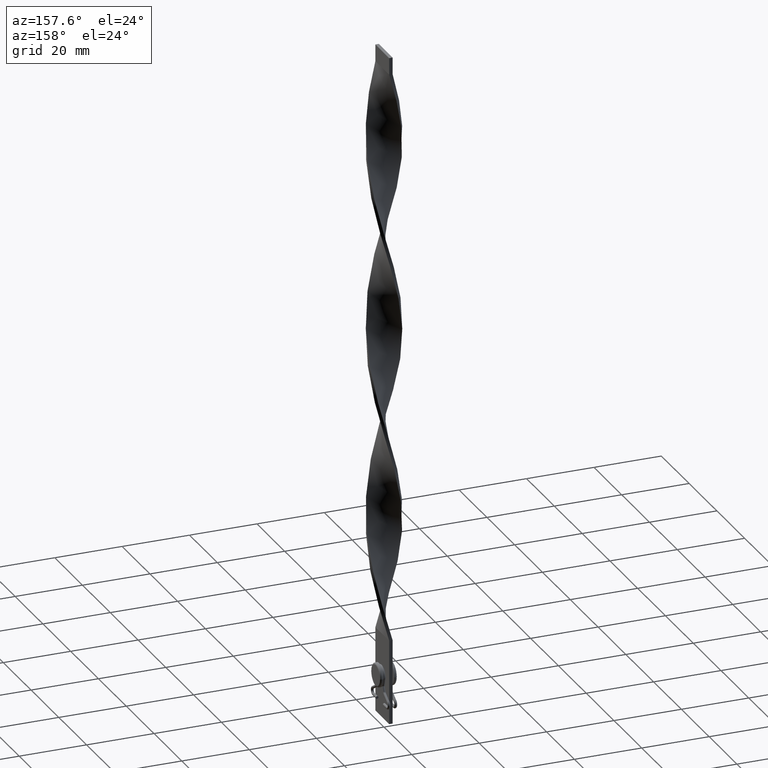
[diagram: clean part render]
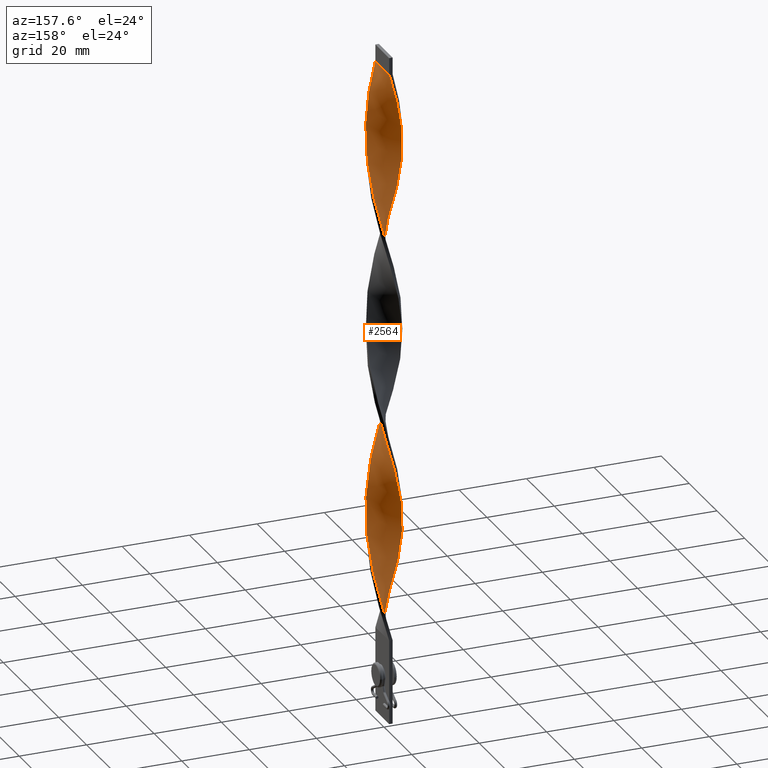
[diagram: same view with one face highlighted and labeled with its STEP entity id]
A machine part, auxiliary view. The second image highlights one B-rep face of the part: STEP entity #2564.
In plain terms, the highlighted face is a freeform B-spline surface patch.
Its self-contained STEP definition (entity closure, byte-faithful):
#6 = CARTESIAN_POINT ( 'NONE',  ( 2.830915826873204200, 4.151616020438156696, 150.9259259259259238 ) ) ;
#13 = CARTESIAN_POINT ( 'NONE',  ( -4.151616020438162913, -2.830915826873211305, 154.0740740740740478 ) ) ;
#19 = CARTESIAN_POINT ( 'NONE',  ( -5.010862853894501256, 0.3758370118285449535, 113.1481481481481381 ) ) ;
#43 = CARTESIAN_POINT ( 'NONE',  ( 1.240254406235387963, 4.869473175592372804, 31.29629629629629406 ) ) ;
#49 = CARTESIAN_POINT ( 'NONE',  ( -1.666278106443306317, 4.760964975158707091, 73.79629629629630472 ) ) ;
#66 = CARTESIAN_POINT ( 'NONE',  ( 4.956255668237032452, 0.9374433176296207426, 165.0925925925925810 ) ) ;
#92 = CARTESIAN_POINT ( 'NONE',  ( -3.289977561793735905, -3.823521657529087570, 36.01851851851851904 ) ) ;
#117 = CARTESIAN_POINT ( 'NONE',  ( -4.977981376026053617, -0.8142307060274773800, 48.61111111111110716 ) ) ;
#138 = CARTESIAN_POINT ( 'NONE',  ( -2.179947027021298389, -4.527453032266712363, 31.29629629629629406 ) ) ;
#155 = CARTESIAN_POINT ( 'NONE',  ( 4.956255668237033341, 0.9374433176296206316, 51.75925925925925952 ) ) ;
#160 = CARTESIAN_POINT ( 'NONE',  ( -3.823521657529088902, 3.289977561793734573, 64.35185185185184764 ) ) ;
#162 = CARTESIAN_POINT ( 'NONE',  ( 4.999999999999995559, 0.5000000000000004441, 166.6666666666666572 ) ) ;
#186 = CARTESIAN_POINT ( 'NONE',  ( 2.066987298107786142, -4.580127018922195425, 128.8888888888888857 ) ) ;
#200 = CARTESIAN_POINT ( 'NONE',  ( -3.194135163974161529, 3.903942978190638513, 180.8333333333333144 ) ) ;
#201 = CARTESIAN_POINT ( 'NONE',  ( 1.240254406235387963, 4.869473175592372804, 31.29629629629629406 ) ) ;
#204 = CARTESIAN_POINT ( 'NONE',  ( 5.043744331762966659, -0.06255668237037825818, 108.4259259259259238 ) ) ;
#206 = CARTESIAN_POINT ( 'NONE',  ( -1.783846212051891644, -4.718173684218117003, 143.0555555555555429 ) ) ;
#219 = CARTESIAN_POINT ( 'NONE',  ( 1.666278106443301654, 4.760964975158699097, 32.87037037037036669 ) ) ;
#222 = CARTESIAN_POINT ( 'NONE',  ( 0.4999999999999983902, 5.000000000000004441, 81.66666666666667140 ) ) ;
#225 = CARTESIAN_POINT ( 'NONE',  ( -4.956255668237042222, 0.9374433176296186332, 54.90740740740741188 ) ) ;
#240 = CARTESIAN_POINT ( 'NONE',  ( 4.399289062685680207, -2.467696489772253976, 64.35185185185184764 ) ) ;
#245 = CARTESIAN_POINT ( 'NONE',  ( 4.080127018922197202, -2.933012701892220964, 119.4444444444444429 ) ) ;
#260 = CARTESIAN_POINT ( 'NONE',  ( -0.8142307060274787123, 4.977981376026052729, 190.2777777777777715 ) ) ;
#261 = CARTESIAN_POINT ( 'NONE',  ( -5.010862853894501256, 0.3758370118285449535, 113.1481481481481381 ) ) ;
#265 = CARTESIAN_POINT ( 'NONE',  ( 4.080127018922197202, -2.933012701892220964, 119.4444444444444429 ) ) ;
#266 = CARTESIAN_POINT ( 'NONE',  ( -4.837214676227579169, 1.360644764840755139, 56.48148148148148806 ) ) ;
#284 = CARTESIAN_POINT ( 'NONE',  ( -3.289977561793734129, 3.823521657529078244, 127.3148148148148238 ) ) ;
#288 = CARTESIAN_POINT ( 'NONE',  ( -5.010862853894509250, -0.3758370118285498385, 163.5185185185185048 ) ) ;
#292 = CARTESIAN_POINT ( 'NONE',  ( 2.830915826873204200, 4.151616020438156696, 37.59259259259259522 ) ) ;
#308 = CARTESIAN_POINT ( 'NONE',  ( -0.8142307060274742714, -4.977981376026044735, 86.38888888888888573 ) ) ;
#318 = CARTESIAN_POINT ( 'NONE',  ( 4.999999999999995559, 0.5000000000000004441, 53.33333333333333570 ) ) ;
#332 = CARTESIAN_POINT ( 'NONE',  ( -1.666278106443300544, -4.760964975158699986, 89.53703703703702388 ) ) ;
#340 = CARTESIAN_POINT ( 'NONE',  ( -4.080127018922188320, -2.933012701892219187, 100.5555555555555713 ) ) ;
#354 = CARTESIAN_POINT ( 'NONE',  ( 4.977981376026044735, -0.8142307060274734942, 171.3888888888888857 ) ) ;
#381 = CARTESIAN_POINT ( 'NONE',  ( 3.194135163974161973, -3.903942978190637625, 124.1666666666666714 ) ) ;
#382 = CARTESIAN_POINT ( 'NONE',  ( -4.977981376026053617, -0.8142307060274773800, 161.9444444444444002 ) ) ;
#389 = CARTESIAN_POINT ( 'NONE',  ( -4.580127018922189208, 2.066987298107779036, 119.4444444444444429 ) ) ;
#411 = CARTESIAN_POINT ( 'NONE',  ( 3.903942978190633628, -3.194135163974153091, 180.8333333333333144 ) ) ;
#432 = CARTESIAN_POINT ( 'NONE',  ( 2.830915826873204200, 4.151616020438156696, 150.9259259259259238 ) ) ;
#461 = CARTESIAN_POINT ( 'NONE',  ( -1.783846212051890090, 4.718173684218108122, 133.6111111111111427 ) ) ;
#484 = CARTESIAN_POINT ( 'NONE',  ( -4.580127018922196314, -2.066987298107784365, 43.88888888888889284 ) ) ;
#486 = CARTESIAN_POINT ( 'NONE',  ( 3.596960269992183434, -3.508828410751616556, 182.4074074074074190 ) ) ;
#504 = CARTESIAN_POINT ( 'NONE',  ( -0.5000000000000001110, 4.999999999999995559, 25.00000000000000000 ) ) ;
#510 = CARTESIAN_POINT ( 'NONE',  ( -4.527453032266712363, 2.179947027021298389, 59.62962962962962621 ) ) ;
#512 = CARTESIAN_POINT ( 'NONE',  ( 3.508828410751617000, 3.596960269992182990, 154.0740740740740478 ) ) ;
#533 = CARTESIAN_POINT ( 'NONE',  ( 4.977981376026053617, 0.8142307060274766028, 105.2777777777777715 ) ) ;
#553 = CARTESIAN_POINT ( 'NONE',  ( 5.010862853894509250, 0.3758370118285493944, 106.8518518518518619 ) ) ;
#555 = CARTESIAN_POINT ( 'NONE',  ( 4.760964975158706203, 1.666278106443308982, 102.1296296296296333 ) ) ;
#574 = CARTESIAN_POINT ( 'NONE',  ( -3.289977561793735905, -3.823521657529087570, 149.3518518518518476 ) ) ;
#588 = VERTEX_POINT ( 'NONE', #3949 ) ;
#589 = CARTESIAN_POINT ( 'NONE',  ( -2.179947027021298389, -4.527453032266712363, 144.6296296296296475 ) ) ;
#593 = CARTESIAN_POINT ( 'NONE',  ( 4.151616020438162025, 2.830915826873212193, 97.40740740740741899 ) ) ;
#596 = CARTESIAN_POINT ( 'NONE',  ( 4.527453032266713251, -2.179947027021295725, 116.2962962962962905 ) ) ;
#614 = CARTESIAN_POINT ( 'NONE',  ( -4.999999999999995559, -0.5000000000000009992, 110.0000000000000142 ) ) ;
#620 = CARTESIAN_POINT ( 'NONE',  ( 4.977981376026053617, 0.8142307060274768249, 105.2777777777777573 ) ) ;
#621 = CARTESIAN_POINT ( 'NONE',  ( 4.837214676227580057, -1.360644764840753806, 113.1481481481481381 ) ) ;
#634 = CARTESIAN_POINT ( 'NONE',  ( -4.837214676227571175, -1.360644764840754917, 106.8518518518518619 ) ) ;
#639 = CARTESIAN_POINT ( 'NONE',  ( -2.830915826873212193, 4.151616020438162025, 182.4074074074074190 ) ) ;
#642 = CARTESIAN_POINT ( 'NONE',  ( 4.527453032266703481, 2.179947027021297057, 47.03703703703703809 ) ) ;
#651 = CARTESIAN_POINT ( 'NONE',  ( -2.179947027021299721, 4.527453032266702593, 132.0370370370370381 ) ) ;
#653 = CARTESIAN_POINT ( 'NONE',  ( -4.760964975158707091, -1.666278106443306095, 158.7962962962963047 ) ) ;
#659 = CARTESIAN_POINT ( 'NONE',  ( 4.151616020438156696, -2.830915826873205088, 65.92592592592592382 ) ) ;
#677 = CARTESIAN_POINT ( 'NONE',  ( 0.9374433176296199655, -4.956255668237033341, 80.09259259259260944 ) ) ;
#683 = CARTESIAN_POINT ( 'NONE',  ( -4.399289062685686424, -2.467696489772261081, 155.6481481481481524 ) ) ;
#688 = CARTESIAN_POINT ( 'NONE',  ( 0.06255668237038161661, -5.043744331762956890, 83.24074074074074758 ) ) ;
#701 = CARTESIAN_POINT ( 'NONE',  ( -4.580127018922189208, 2.066987298107779036, 119.4444444444444429 ) ) ;
#706 = CARTESIAN_POINT ( 'NONE',  ( 0.8142307060274771580, -4.977981376026053617, 133.6111111111111143 ) ) ;
#710 = CARTESIAN_POINT ( 'NONE',  ( -5.043744331762956890, -0.06255668237038189416, 111.5740740740740620 ) ) ;
#724 = CARTESIAN_POINT ( 'NONE',  ( 3.289977561793733241, -3.823521657529078244, 183.9814814814814667 ) ) ;
#729 = CARTESIAN_POINT ( 'NONE',  ( -2.467696489772262858, 4.399289062685684648, 183.9814814814814667 ) ) ;
#733 = CARTESIAN_POINT ( 'NONE',  ( 2.066987298107778148, 4.580127018922190096, 34.44444444444444287 ) ) ;
#738 = CARTESIAN_POINT ( 'NONE',  ( -4.837214676227579169, 1.360644764840755139, 56.48148148148148806 ) ) ;
#763 = CARTESIAN_POINT ( 'NONE',  ( 0.9374433176296199655, -4.956255668237032452, 193.4259259259259238 ) ) ;
#784 = CARTESIAN_POINT ( 'NONE',  ( 5.043744331762956890, 0.06255668237038129742, 168.2407407407407618 ) ) ;
#803 = CARTESIAN_POINT ( 'NONE',  ( 1.666278106443301654, 4.760964975158699097, 146.2037037037037237 ) ) ;
#829 = CARTESIAN_POINT ( 'NONE',  ( -4.399289062685686424, -2.467696489772261081, 42.31481481481481666 ) ) ;
#831 = CARTESIAN_POINT ( 'NONE',  ( 4.977981376026044735, -0.8142307060274733832, 171.3888888888888857 ) ) ;
#854 = CARTESIAN_POINT ( 'NONE',  ( -0.4999999999999990563, -5.000000000000004441, 25.00000000000000000 ) ) ;
#856 = CARTESIAN_POINT ( 'NONE',  ( -4.151616020438162913, -2.830915826873211305, 40.74074074074074758 ) ) ;
#857 = B_SPLINE_CURVE_WITH_KNOTS ( 'NONE', 3,
 ( #3061, #1372, #4496, #2708 ),
 .UNSPECIFIED., .F., .F.,
 ( 4, 4 ),
 ( 0.000000000000000000, 1.000000000000000000 ),
 .UNSPECIFIED. ) ;
#871 = CARTESIAN_POINT ( 'NONE',  ( -4.837214676227579169, 1.360644764840755139, 169.8148148148148096 ) ) ;
#872 = CARTESIAN_POINT ( 'NONE',  ( 4.527453032266703481, 2.179947027021297057, 47.03703703703703809 ) ) ;
#877 = CARTESIAN_POINT ( 'NONE',  ( -1.360644764840755361, -4.837214676227579169, 28.14814814814815236 ) ) ;
#879 = CARTESIAN_POINT ( 'NONE',  ( -2.467696489772262858, 4.399289062685684648, 70.64814814814815236 ) ) ;
#891 = CARTESIAN_POINT ( 'NONE',  ( 4.977981376026044735, -0.8142307060274734942, 58.05555555555555713 ) ) ;
#899 = CARTESIAN_POINT ( 'NONE',  ( -0.06255668237037793900, -5.043744331762966659, 136.7592592592592666 ) ) ;
#919 = CARTESIAN_POINT ( 'NONE',  ( -2.576047841990704690, -4.336732380315306834, 146.2037037037037237 ) ) ;
#934 = CARTESIAN_POINT ( 'NONE',  ( -4.336732380315307722, 2.576047841990704246, 174.5370370370370381 ) ) ;
#937 = CARTESIAN_POINT ( 'NONE',  ( 4.837214676227580057, -1.360644764840753806, 113.1481481481481381 ) ) ;
#939 = CARTESIAN_POINT ( 'NONE',  ( 5.000000000000004441, -0.4999999999999981681, 110.0000000000000142 ) ) ;
#953 = CARTESIAN_POINT ( 'NONE',  ( 3.194135163974154423, 3.903942978190633628, 39.16666666666667140 ) ) ;
#958 = CARTESIAN_POINT ( 'NONE',  ( 3.823521657529088014, -3.289977561793735905, 121.0185185185185190 ) ) ;
#960 = CARTESIAN_POINT ( 'NONE',  ( 0.8142307060274771580, -4.977981376026053617, 133.6111111111111427 ) ) ;
#973 =( BOUNDED_SURFACE ( )  B_SPLINE_SURFACE ( 1, 2, ( 
 ( #3829, #2420, #3475, #4204, #43, #3545, #733, #4604, #292, #4585, #2065, #4298, #1011, #3504, #642, #3870, #3893, #2045, #318, #1700, #2136, #2114, #2868, #3119, #4563, #1442, #659, #3210, #1351, #3847, #3161, #2400, #2777, #1392, #1724, #3138, #2092, #688, #1029, #1368, #2797, #4223, #2487, #1765, #3573, #2441, #3524, #2821, #340, #1746, #2844, #4246, #1050, #2463, #3187, #710, #19, #1416, #4270, #1075, #389, #1793, #4373, #1125, #2942, #3263, #4324, #2537, #2210, #461, #2890, #1515, #1563, #1097, #3972, #1167, #3945, #803, #2582, #2512, #432, #2162, #512, #2608, #3336, #2560, #3291, #3598, #4350, #66, #162, #784, #4017, #831, #3993, #1192, #3620, #2240, #3674, #411, #486, #1838, #4396, #1816, #2185, #2986, #1890, #763, #1911 ),
 ( #4044, #3237, #3313, #1147, #138, #1463, #1536, #92, #2959, #1865, #856, #1491, #2262, #2918, #3647, #117, #3697, #3762, #1585, #225, #266, #4425, #2652, #1627, #2633, #4107, #3051, #1218, #3742, #879, #3806, #1299, #2019, #1257, #1974, #2286, #3027, #3363, #3452, #1235, #4485, #4128, #2678, #4506, #2309, #1277, #2697, #3717, #2350, #555, #3072, #533, #4445, #1673, #939, #4065, #621, #3783, #596, #2722, #245, #4148, #4085, #1999, #3428, #1932, #186, #3006, #1651, #960, #2374, #899, #1602, #1955, #3384, #206, #4465, #919, #2329, #574, #3404, #4242, #13, #683, #986, #653, #2774, #382, #288, #4200, #1323, #4581, #4599, #4530, #1006, #2396, #2841, #2815, #3566, #3824, #639, #729, #1347, #3916, #2039, #3114, #3865, #2131, #3093 ) ),
 .UNSPECIFIED., .F., .F., .F. ) 
 B_SPLINE_SURFACE_WITH_KNOTS ( ( 2, 2 ),
 ( 3, 2, 2, 2, 2, 2, 2, 2, 2, 2, 2, 2, 2, 2, 2, 2, 2, 2, 2, 2, 2, 2, 2, 2, 2, 2, 2, 2, 2, 2, 2, 2, 2, 2, 2, 2, 2, 2, 2, 2, 2, 2, 2, 2, 2, 2, 2, 2, 2, 2, 2, 2, 2, 2, 3 ),
 ( 0.000000000000000000, 1.000000000000000000 ),
 ( 0.000000000000000000, 0.01388888888888888812, 0.02777777777777777624, 0.04166666666666666435, 0.05555555555555555247, 0.06944444444444444753, 0.08333333333333332871, 0.09722222222222222376, 0.1111111111111111049, 0.1250000000000000000, 0.1388888888888888951, 0.1527777777777777901, 0.1666666666666666574, 0.1805555555555555525, 0.1944444444444444475, 0.2083333333333333426, 0.2222222222222222099, 0.2361111111111111049, 0.2500000000000000000, 0.2638888888888888951, 0.2777777777777777901, 0.2916666666666666852, 0.3055555555555555802, 0.3194444444444444198, 0.3333333333333333148, 0.3472222222222222099, 0.3611111111111111049, 0.3750000000000000000, 0.3888888888888888951, 0.4027777777777777901, 0.4166666666666666852, 0.4305555555555555802, 0.4444444444444444198, 0.4583333333333333148, 0.4722222222222222099, 0.4861111111111111049, 0.5000000000000000000, 0.5138888888888888395, 0.5277777777777777901, 0.5416666666666666297, 0.5555555555555555802, 0.5694444444444444198, 0.5833333333333333703, 0.5972222222222222099, 0.6111111111111111605, 0.6250000000000000000, 0.6388888888888888395, 0.6527777777777777901, 0.6666666666666666297, 0.6805555555555555802, 0.6944444444444444198, 0.7083333333333333703, 0.7222222222222222099, 0.7361111111111111605, 0.7500000000000000000 ),
 .UNSPECIFIED. ) 
 GEOMETRIC_REPRESENTATION_ITEM ( )  RATIONAL_B_SPLINE_SURFACE ( (
 ( 1.000000000000000000, 0.9961946980917455452, 1.000000000000000000, 0.9961946980917455452, 1.000000000000000000, 0.9961946980917455452, 1.000000000000000000, 0.9961946980917455452, 1.000000000000000000, 0.9961946980917455452, 1.000000000000000000, 0.9961946980917455452, 1.000000000000000000, 0.9961946980917455452, 1.000000000000000000, 0.9961946980917455452, 1.000000000000000000, 0.9961946980917455452, 1.000000000000000000, 0.9961946980917455452, 1.000000000000000000, 0.9961946980917455452, 1.000000000000000000, 0.9961946980917455452, 1.000000000000000000, 0.9961946980917455452, 1.000000000000000000, 0.9961946980917455452, 1.000000000000000000, 0.9961946980917455452, 1.000000000000000000, 0.9961946980917455452, 1.000000000000000000, 0.9961946980917455452, 1.000000000000000000, 0.9961946980917455452, 1.000000000000000000, 0.9961946980917455452, 1.000000000000000000, 0.9961946980917455452, 1.000000000000000000, 0.9961946980917455452, 1.000000000000000000, 0.9961946980917455452, 1.000000000000000000, 0.9961946980917455452, 1.000000000000000000, 0.9961946980917455452, 1.000000000000000000, 0.9961946980917455452, 1.000000000000000000, 0.9961946980917455452, 1.000000000000000000, 0.9961946980917455452, 1.000000000000000000, 0.9961946980917455452, 1.000000000000000000, 0.9961946980917455452, 1.000000000000000000, 0.9961946980917455452, 1.000000000000000000, 0.9961946980917455452, 1.000000000000000000, 0.9961946980917455452, 1.000000000000000000, 0.9961946980917455452, 1.000000000000000000, 0.9961946980917455452, 1.000000000000000000, 0.9961946980917455452, 1.000000000000000000, 0.9961946980917455452, 1.000000000000000000, 0.9961946980917455452, 1.000000000000000000, 0.9961946980917455452, 1.000000000000000000, 0.9961946980917455452, 1.000000000000000000, 0.9961946980917455452, 1.000000000000000000, 0.9961946980917455452, 1.000000000000000000, 0.9961946980917455452, 1.000000000000000000, 0.9961946980917455452, 1.000000000000000000, 0.9961946980917455452, 1.000000000000000000, 0.9961946980917455452, 1.000000000000000000, 0.9961946980917455452, 1.000000000000000000, 0.9961946980917455452, 1.000000000000000000, 0.9961946980917455452, 1.000000000000000000, 0.9961946980917455452, 1.000000000000000000, 0.9961946980917455452, 1.000000000000000000, 0.9961946980917455452, 1.000000000000000000, 0.9961946980917455452, 1.000000000000000000, 0.9961946980917455452, 1.000000000000000000, 0.9961946980917455452, 1.000000000000000000),
 ( 1.000000000000000000, 0.9961946980917455452, 1.000000000000000000, 0.9961946980917455452, 1.000000000000000000, 0.9961946980917455452, 1.000000000000000000, 0.9961946980917455452, 1.000000000000000000, 0.9961946980917455452, 1.000000000000000000, 0.9961946980917455452, 1.000000000000000000, 0.9961946980917455452, 1.000000000000000000, 0.9961946980917455452, 1.000000000000000000, 0.9961946980917455452, 1.000000000000000000, 0.9961946980917455452, 1.000000000000000000, 0.9961946980917455452, 1.000000000000000000, 0.9961946980917455452, 1.000000000000000000, 0.9961946980917455452, 1.000000000000000000, 0.9961946980917455452, 1.000000000000000000, 0.9961946980917455452, 1.000000000000000000, 0.9961946980917455452, 1.000000000000000000, 0.9961946980917455452, 1.000000000000000000, 0.9961946980917455452, 1.000000000000000000, 0.9961946980917455452, 1.000000000000000000, 0.9961946980917455452, 1.000000000000000000, 0.9961946980917455452, 1.000000000000000000, 0.9961946980917455452, 1.000000000000000000, 0.9961946980917455452, 1.000000000000000000, 0.9961946980917455452, 1.000000000000000000, 0.9961946980917455452, 1.000000000000000000, 0.9961946980917455452, 1.000000000000000000, 0.9961946980917455452, 1.000000000000000000, 0.9961946980917455452, 1.000000000000000000, 0.9961946980917455452, 1.000000000000000000, 0.9961946980917455452, 1.000000000000000000, 0.9961946980917455452, 1.000000000000000000, 0.9961946980917455452, 1.000000000000000000, 0.9961946980917455452, 1.000000000000000000, 0.9961946980917455452, 1.000000000000000000, 0.9961946980917455452, 1.000000000000000000, 0.9961946980917455452, 1.000000000000000000, 0.9961946980917455452, 1.000000000000000000, 0.9961946980917455452, 1.000000000000000000, 0.9961946980917455452, 1.000000000000000000, 0.9961946980917455452, 1.000000000000000000, 0.9961946980917455452, 1.000000000000000000, 0.9961946980917455452, 1.000000000000000000, 0.9961946980917455452, 1.000000000000000000, 0.9961946980917455452, 1.000000000000000000, 0.9961946980917455452, 1.000000000000000000, 0.9961946980917455452, 1.000000000000000000, 0.9961946980917455452, 1.000000000000000000, 0.9961946980917455452, 1.000000000000000000, 0.9961946980917455452, 1.000000000000000000, 0.9961946980917455452, 1.000000000000000000, 0.9961946980917455452, 1.000000000000000000, 0.9961946980917455452, 1.000000000000000000, 0.9961946980917455452, 1.000000000000000000, 0.9961946980917455452, 1.000000000000000000) ) ) 
 REPRESENTATION_ITEM ( '' )  SURFACE ( )  );
#982 = CARTESIAN_POINT ( 'NONE',  ( -4.977981376026045623, 0.8142307060274717179, 114.7222222222222285 ) ) ;
#986 = CARTESIAN_POINT ( 'NONE',  ( -4.580127018922196314, -2.066987298107784365, 157.2222222222222001 ) ) ;
#1000 = CARTESIAN_POINT ( 'NONE',  ( 1.360644764840756915, -4.837214676227571175, 78.51851851851851904 ) ) ;
#1006 = CARTESIAN_POINT ( 'NONE',  ( -4.527453032266712363, 2.179947027021298389, 172.9629629629629619 ) ) ;
#1011 = CARTESIAN_POINT ( 'NONE',  ( 4.080127018922188320, 2.933012701892217411, 43.88888888888889284 ) ) ;
#1018 = CARTESIAN_POINT ( 'NONE',  ( -2.066987298107776816, -4.580127018922190985, 91.11111111111111427 ) ) ;
#1020 = LINE ( 'NONE', #4264, #1045 ) ;
#1029 = CARTESIAN_POINT ( 'NONE',  ( -0.3758370118285451755, -5.010862853894501256, 84.81481481481480955 ) ) ;
#1042 = CARTESIAN_POINT ( 'NONE',  ( 5.010862853894500368, -0.3758370118285466743, 169.8148148148148096 ) ) ;
#1045 = VECTOR ( 'NONE', #1069, 1000.000000000000000 ) ;
#1050 = CARTESIAN_POINT ( 'NONE',  ( -4.837214676227571175, -1.360644764840754917, 106.8518518518518619 ) ) ;
#1065 = CARTESIAN_POINT ( 'NONE',  ( -0.3758370118285451755, -5.010862853894501256, 84.81481481481480955 ) ) ;
#1068 = CARTESIAN_POINT ( 'NONE',  ( -0.5000000000000001110, 4.999999999999995559, 25.00000000000000000 ) ) ;
#1069 = DIRECTION ( 'NONE',  ( 1.084202172485504434E-16, -1.000000000000000000, 0.000000000000000000 ) ) ;
#1075 = CARTESIAN_POINT ( 'NONE',  ( -4.760964975158700874, 1.666278106443298324, 117.8703703703703667 ) ) ;
#1080 = CARTESIAN_POINT ( 'NONE',  ( -5.043744331762966659, 0.06255668237037771695, 51.75925925925925952 ) ) ;
#1097 = CARTESIAN_POINT ( 'NONE',  ( -0.06255668237038052026, 5.043744331762956890, 139.9074074074073906 ) ) ;
#1125 = CARTESIAN_POINT ( 'NONE',  ( -3.903942978190634072, 3.194135163974152647, 124.1666666666666714 ) ) ;
#1147 = CARTESIAN_POINT ( 'NONE',  ( -1.783846212051891644, -4.718173684218117003, 29.72222222222222143 ) ) ;
#1167 = CARTESIAN_POINT ( 'NONE',  ( 0.8142307060274740493, 4.977981376026044735, 143.0555555555555429 ) ) ;
#1192 = CARTESIAN_POINT ( 'NONE',  ( 4.760964975158699986, -1.666278106443300988, 174.5370370370370381 ) ) ;
#1218 = CARTESIAN_POINT ( 'NONE',  ( -3.194135163974161529, 3.903942978190638069, 67.50000000000001421 ) ) ;
#1231 = CARTESIAN_POINT ( 'NONE',  ( -5.010862853894509250, -0.3758370118285498385, 163.5185185185185048 ) ) ;
#1235 = CARTESIAN_POINT ( 'NONE',  ( 1.783846212051891866, 4.718173684218117003, 86.38888888888888573 ) ) ;
#1249 = CARTESIAN_POINT ( 'NONE',  ( -2.467696489772262858, 4.399289062685684648, 183.9814814814814667 ) ) ;
#1257 = CARTESIAN_POINT ( 'NONE',  ( -0.8142307060274787123, 4.977981376026052729, 76.94444444444445708 ) ) ;
#1265 = ORIENTED_EDGE ( 'NONE', *, *, #3773, .F. ) ;
#1277 = CARTESIAN_POINT ( 'NONE',  ( 3.903942978190638069, 3.194135163974161973, 95.83333333333331439 ) ) ;
#1293 = CARTESIAN_POINT ( 'NONE',  ( -4.399289062685686424, -2.467696489772261081, 155.6481481481481524 ) ) ;
#1297 = CARTESIAN_POINT ( 'NONE',  ( 4.760964975158706203, 1.666278106443308760, 102.1296296296296191 ) ) ;
#1299 = CARTESIAN_POINT ( 'NONE',  ( -1.666278106443306539, 4.760964975158707091, 73.79629629629630472 ) ) ;
#1316 = CARTESIAN_POINT ( 'NONE',  ( 2.179947027021297501, -4.527453032266703481, 75.37037037037036669 ) ) ;
#1321 = CARTESIAN_POINT ( 'NONE',  ( 5.000000000000004441, -0.4999999999999981681, 110.0000000000000142 ) ) ;
#1323 = CARTESIAN_POINT ( 'NONE',  ( -5.000000000000004441, 0.4999999999999987232, 166.6666666666666572 ) ) ;
#1343 = CARTESIAN_POINT ( 'NONE',  ( -4.151616020438156696, 2.830915826873204200, 122.5925925925925810 ) ) ;
#1347 = CARTESIAN_POINT ( 'NONE',  ( -2.066987298107783477, 4.580127018922197202, 185.5555555555555429 ) ) ;
#1351 = CARTESIAN_POINT ( 'NONE',  ( 3.596960269992183434, -3.508828410751616556, 69.07407407407406197 ) ) ;
#1359 = CARTESIAN_POINT ( 'NONE',  ( 4.336732380315298840, 2.576047841990702469, 158.7962962962963047 ) ) ;
#1368 = CARTESIAN_POINT ( 'NONE',  ( -0.8142307060274742714, -4.977981376026044735, 86.38888888888888573 ) ) ;
#1372 = CARTESIAN_POINT ( 'NONE',  ( 0.5000000000000000000, -1.666666666666662744, 195.0000000000000000 ) ) ;
#1380 = CARTESIAN_POINT ( 'NONE',  ( 4.080127018922188320, 2.933012701892217411, 157.2222222222222001 ) ) ;
#1390 = EDGE_CURVE ( 'NONE', #588, #2428, #3500, .T. ) ;
#1392 = CARTESIAN_POINT ( 'NONE',  ( 1.783846212051891644, -4.718173684218107233, 76.94444444444445708 ) ) ;
#1407 = CARTESIAN_POINT ( 'NONE',  ( -4.869473175592371916, 1.240254406235384854, 116.2962962962962905 ) ) ;
#1416 = CARTESIAN_POINT ( 'NONE',  ( -4.977981376026045623, 0.8142307060274716068, 114.7222222222222285 ) ) ;
#1424 = CARTESIAN_POINT ( 'NONE',  ( -4.760964975158707091, -1.666278106443305873, 45.46296296296296902 ) ) ;
#1438 = CARTESIAN_POINT ( 'NONE',  ( 2.066987298107786142, -4.580127018922195425, 128.8888888888888857 ) ) ;
#1442 = CARTESIAN_POINT ( 'NONE',  ( 4.399289062685680207, -2.467696489772253976, 64.35185185185184764 ) ) ;
#1456 = CARTESIAN_POINT ( 'NONE',  ( 2.179947027021297501, -4.527453032266703481, 188.7037037037036953 ) ) ;
#1463 = CARTESIAN_POINT ( 'NONE',  ( -2.576047841990704690, -4.336732380315306834, 32.87037037037037379 ) ) ;
#1478 = CARTESIAN_POINT ( 'NONE',  ( 4.151616020438156696, -2.830915826873205088, 179.2592592592592666 ) ) ;
#1491 = CARTESIAN_POINT ( 'NONE',  ( -4.399289062685686424, -2.467696489772261081, 42.31481481481481666 ) ) ;
#1515 = CARTESIAN_POINT ( 'NONE',  ( -0.9374433176296205206, 4.956255668237032452, 136.7592592592592666 ) ) ;
#1525 = CARTESIAN_POINT ( 'NONE',  ( 3.596960269992183434, -3.508828410751616556, 182.4074074074074190 ) ) ;
#1536 = CARTESIAN_POINT ( 'NONE',  ( -2.933012701892220075, -4.080127018922198090, 34.44444444444444287 ) ) ;
#1563 = CARTESIAN_POINT ( 'NONE',  ( -0.5000000000000001110, 4.999999999999995559, 138.3333333333333428 ) ) ;
#1580 = CARTESIAN_POINT ( 'NONE',  ( -4.718173684218117003, 1.783846212051890978, 171.3888888888888857 ) ) ;
#1581 = CARTESIAN_POINT ( 'NONE',  ( -0.06255668237038052026, 5.043744331762957778, 26.57407407407407618 ) ) ;
#1585 = CARTESIAN_POINT ( 'NONE',  ( -5.000000000000004441, 0.4999999999999987232, 53.33333333333333570 ) ) ;
#1597 = CARTESIAN_POINT ( 'NONE',  ( 3.289977561793733241, -3.823521657529078244, 70.64814814814815236 ) ) ;
#1600 = CARTESIAN_POINT ( 'NONE',  ( 3.903942978190638513, 3.194135163974161973, 95.83333333333332860 ) ) ;
#1602 = CARTESIAN_POINT ( 'NONE',  ( -0.4999999999999990563, -5.000000000000004441, 138.3333333333333428 ) ) ;
#1618 = CARTESIAN_POINT ( 'NONE',  ( -3.823521657529088902, 3.289977561793734573, 177.6851851851851620 ) ) ;
#1619 = CARTESIAN_POINT ( 'NONE',  ( 5.043744331762957778, 0.06255668237038129742, 54.90740740740740478 ) ) ;
#1627 = CARTESIAN_POINT ( 'NONE',  ( -4.336732380315307722, 2.576047841990704246, 61.20370370370370239 ) ) ;
#1644 = CARTESIAN_POINT ( 'NONE',  ( 3.903942978190633628, -3.194135163974153535, 67.50000000000000000 ) ) ;
#1651 = CARTESIAN_POINT ( 'NONE',  ( 1.240254406235395512, -4.869473175592379022, 132.0370370370370381 ) ) ;
#1664 = CARTESIAN_POINT ( 'NONE',  ( -1.360644764840755361, -4.837214676227579169, 141.4814814814814952 ) ) ;
#1666 = CARTESIAN_POINT ( 'NONE',  ( -4.399289062685679319, 2.467696489772254864, 121.0185185185185190 ) ) ;
#1672 = CARTESIAN_POINT ( 'NONE',  ( 3.508828410751624993, -3.596960269992187431, 122.5925925925925810 ) ) ;
#1673 = CARTESIAN_POINT ( 'NONE',  ( 5.043744331762966659, -0.06255668237037825818, 108.4259259259259238 ) ) ;
#1689 = CARTESIAN_POINT ( 'NONE',  ( -2.933012701892219187, 4.080127018922187432, 128.8888888888888857 ) ) ;
#1694 = CARTESIAN_POINT ( 'NONE',  ( -0.06255668237037793900, -5.043744331762966659, 136.7592592592592666 ) ) ;
#1700 = CARTESIAN_POINT ( 'NONE',  ( 5.043744331762956890, 0.06255668237038129742, 54.90740740740741188 ) ) ;
#1717 = CARTESIAN_POINT ( 'NONE',  ( 3.194135163974154423, 3.903942978190633628, 152.5000000000000000 ) ) ;
#1724 = CARTESIAN_POINT ( 'NONE',  ( 1.360644764840756915, -4.837214676227571175, 78.51851851851851904 ) ) ;
#1738 = CARTESIAN_POINT ( 'NONE',  ( -4.080127018922188320, -2.933012701892219187, 100.5555555555555713 ) ) ;
#1746 = CARTESIAN_POINT ( 'NONE',  ( -4.336732380315297064, -2.576047841990704690, 102.1296296296296333 ) ) ;
#1750 = CARTESIAN_POINT ( 'NONE',  ( -3.194135163974161529, 3.903942978190638513, 67.50000000000000000 ) ) ;
#1756 = CARTESIAN_POINT ( 'NONE',  ( 4.760964975158699986, -1.666278106443300988, 174.5370370370370381 ) ) ;
#1765 = CARTESIAN_POINT ( 'NONE',  ( -2.467696489772253976, -4.399289062685680207, 92.68518518518517624 ) ) ;
#1772 = CARTESIAN_POINT ( 'NONE',  ( -2.179947027021298389, -4.527453032266712363, 31.29629629629629406 ) ) ;
#1782 = CARTESIAN_POINT ( 'NONE',  ( 4.399289062685680207, -2.467696489772253976, 177.6851851851851620 ) ) ;
#1793 = CARTESIAN_POINT ( 'NONE',  ( -4.399289062685679319, 2.467696489772254864, 121.0185185185185333 ) ) ;
#1799 = CARTESIAN_POINT ( 'NONE',  ( -2.576047841990704690, -4.336732380315306834, 32.87037037037036669 ) ) ;
#1816 = CARTESIAN_POINT ( 'NONE',  ( 2.576047841990702914, -4.336732380315298840, 187.1296296296296191 ) ) ;
#1838 = CARTESIAN_POINT ( 'NONE',  ( 3.289977561793733241, -3.823521657529078244, 183.9814814814814667 ) ) ;
#1865 = CARTESIAN_POINT ( 'NONE',  ( -3.903942978190638513, -3.194135163974161529, 39.16666666666667140 ) ) ;
#1866 = VERTEX_POINT ( 'NONE', #1068 ) ;
#1887 = CARTESIAN_POINT ( 'NONE',  ( 0.5000000000000007772, -4.999999999999995559, 195.0000000000000000 ) ) ;
#1888 = CARTESIAN_POINT ( 'NONE',  ( -4.956255668237042222, 0.9374433176296186332, 54.90740740740740478 ) ) ;
#1890 = CARTESIAN_POINT ( 'NONE',  ( 1.360644764840756915, -4.837214676227571175, 191.8518518518518476 ) ) ;
#1905 = CARTESIAN_POINT ( 'NONE',  ( 2.066987298107778148, 4.580127018922190096, 34.44444444444444287 ) ) ;
#1911 = CARTESIAN_POINT ( 'NONE',  ( 0.5000000000000007772, -4.999999999999995559, 195.0000000000000000 ) ) ;
#1932 = CARTESIAN_POINT ( 'NONE',  ( 2.467696489772263302, -4.399289062685684648, 127.3148148148148238 ) ) ;
#1949 = CARTESIAN_POINT ( 'NONE',  ( -2.576047841990704690, -4.336732380315306834, 146.2037037037036953 ) ) ;
#1951 = CARTESIAN_POINT ( 'NONE',  ( 4.080127018922188320, 2.933012701892217411, 43.88888888888889284 ) ) ;
#1955 = CARTESIAN_POINT ( 'NONE',  ( -0.9374433176296194103, -4.956255668237042222, 139.9074074074073906 ) ) ;
#1972 = CARTESIAN_POINT ( 'NONE',  ( -0.8142307060274787123, 4.977981376026052729, 76.94444444444445708 ) ) ;
#1974 = CARTESIAN_POINT ( 'NONE',  ( -0.3758370118285512262, 5.010862853894509250, 78.51851851851851904 ) ) ;
#1997 = CARTESIAN_POINT ( 'NONE',  ( 4.399289062685684648, 2.467696489772262858, 98.98148148148148096 ) ) ;
#1999 = CARTESIAN_POINT ( 'NONE',  ( 3.194135163974161973, -3.903942978190637181, 124.1666666666666714 ) ) ;
#2014 = CARTESIAN_POINT ( 'NONE',  ( -4.527453032266712363, 2.179947027021298389, 172.9629629629629619 ) ) ;
#2015 = CARTESIAN_POINT ( 'NONE',  ( -3.194135163974153535, -3.903942978190634072, 95.83333333333332860 ) ) ;
#2019 = CARTESIAN_POINT ( 'NONE',  ( -1.240254406235392626, 4.869473175592379022, 75.37037037037036669 ) ) ;
#2035 = CARTESIAN_POINT ( 'NONE',  ( -5.043744331762957778, -0.06255668237038189416, 111.5740740740740762 ) ) ;
#2039 = CARTESIAN_POINT ( 'NONE',  ( -1.240254406235392626, 4.869473175592379022, 188.7037037037036953 ) ) ;
#2045 = CARTESIAN_POINT ( 'NONE',  ( 4.956255668237032452, 0.9374433176296207426, 51.75925925925925952 ) ) ;
#2055 = CARTESIAN_POINT ( 'NONE',  ( 2.066987298107778148, 4.580127018922190096, 147.7777777777777715 ) ) ;
#2065 = CARTESIAN_POINT ( 'NONE',  ( 3.508828410751617000, 3.596960269992182990, 40.74074074074074758 ) ) ;
#2082 = CARTESIAN_POINT ( 'NONE',  ( -1.783846212051890090, 4.718173684218108122, 133.6111111111111143 ) ) ;
#2087 =( BOUNDED_CURVE ( )  B_SPLINE_CURVE ( 2, ( #504, #1581, #2325, #3329, #201, #219, #1905, #4440, #4061, #953, #3422, #2367, #1951, #2671, #872, #3737, #3711, #155, #3002, #1619, #3044, #891, #2345, #3067, #4103, #240, #2304, #1644, #3379, #1597, #3022, #4458, #1316, #2389, #1000, #677, #3175, #2743, #1065, #308, #3151, #332, #1018, #3445, #3800, #2015, #2808, #2456, #1738, #2837, #2409, #4550, #634, #3819, #614, #2035, #261, #982, #1407, #4595, #701, #1666, #1343, #3467, #3088, #284, #1689, #4524, #651, #2082, #4171, #3107, #2768, #3537, #3514, #4260, #4192, #3838, #2055, #3491, #6, #1717, #3130, #4574, #1380, #1359, #2786, #4213, #3884, #4236, #2430, #3859, #1042, #354, #2107, #1756, #2859, #1782, #1478, #2174, #1525, #724, #2929, #3910, #1456, #4385, #2199, #2528, #3278 ),
 .UNSPECIFIED., .F., .T. ) 
 B_SPLINE_CURVE_WITH_KNOTS ( ( 3, 2, 2, 2, 2, 2, 2, 2, 2, 2, 2, 2, 2, 2, 2, 2, 2, 2, 2, 2, 2, 2, 2, 2, 2, 2, 2, 2, 2, 2, 2, 2, 2, 2, 2, 2, 2, 2, 2, 2, 2, 2, 2, 2, 2, 2, 2, 2, 2, 2, 2, 2, 2, 2, 3 ),
 ( 0.000000000000000000, 0.01388888888888888812, 0.02777777777777777624, 0.04166666666666666435, 0.05555555555555555247, 0.06944444444444444753, 0.08333333333333332871, 0.09722222222222222376, 0.1111111111111111049, 0.1250000000000000000, 0.1388888888888888951, 0.1527777777777777901, 0.1666666666666666574, 0.1805555555555555525, 0.1944444444444444475, 0.2083333333333333426, 0.2222222222222222099, 0.2361111111111110772, 0.2500000000000000000, 0.2638888888888888951, 0.2777777777777777901, 0.2916666666666666852, 0.3055555555555555802, 0.3194444444444444198, 0.3333333333333333148, 0.3472222222222221544, 0.3611111111111111049, 0.3750000000000000000, 0.3888888888888888951, 0.4027777777777778456, 0.4166666666666666852, 0.4305555555555555802, 0.4444444444444444198, 0.4583333333333333148, 0.4722222222222221544, 0.4861111111111111049, 0.5000000000000000000, 0.5138888888888888395, 0.5277777777777777901, 0.5416666666666666297, 0.5555555555555555802, 0.5694444444444444198, 0.5833333333333333703, 0.5972222222222222099, 0.6111111111111111605, 0.6250000000000000000, 0.6388888888888888395, 0.6527777777777777901, 0.6666666666666666297, 0.6805555555555556912, 0.6944444444444443088, 0.7083333333333333703, 0.7222222222222222099, 0.7361111111111111605, 0.7500000000000000000 ),
 .UNSPECIFIED. ) 
 CURVE ( )  GEOMETRIC_REPRESENTATION_ITEM ( )  RATIONAL_B_SPLINE_CURVE ( ( 1.000000000000000000, 0.9961946980917455452, 1.000000000000000000, 0.9961946980917455452, 1.000000000000000000, 0.9961946980917455452, 1.000000000000000000, 0.9961946980917455452, 1.000000000000000000, 0.9961946980917455452, 1.000000000000000000, 0.9961946980917455452, 1.000000000000000000, 0.9961946980917455452, 1.000000000000000000, 0.9961946980917455452, 1.000000000000000000, 0.9961946980917455452, 1.000000000000000000, 0.9961946980917455452, 1.000000000000000000, 0.9961946980917455452, 1.000000000000000000, 0.9961946980917455452, 1.000000000000000000, 0.9961946980917455452, 1.000000000000000000, 0.9961946980917455452, 1.000000000000000000, 0.9961946980917455452, 1.000000000000000000, 0.9961946980917455452, 1.000000000000000000, 0.9961946980917455452, 1.000000000000000000, 0.9961946980917455452, 1.000000000000000000, 0.9961946980917455452, 1.000000000000000000, 0.9961946980917455452, 1.000000000000000000, 0.9961946980917455452, 1.000000000000000000, 0.9961946980917455452, 1.000000000000000000, 0.9961946980917455452, 1.000000000000000000, 0.9961946980917455452, 1.000000000000000000, 0.9961946980917455452, 1.000000000000000000, 0.9961946980917455452, 1.000000000000000000, 0.9961946980917455452, 1.000000000000000000, 0.9961946980917455452, 1.000000000000000000, 0.9961946980917455452, 1.000000000000000000, 0.9961946980917455452, 1.000000000000000000, 0.9961946980917455452, 1.000000000000000000, 0.9961946980917455452, 1.000000000000000000, 0.9961946980917455452, 1.000000000000000000, 0.9961946980917455452, 1.000000000000000000, 0.9961946980917455452, 1.000000000000000000, 0.9961946980917455452, 1.000000000000000000, 0.9961946980917455452, 1.000000000000000000, 0.9961946980917455452, 1.000000000000000000, 0.9961946980917455452, 1.000000000000000000, 0.9961946980917455452, 1.000000000000000000, 0.9961946980917455452, 1.000000000000000000, 0.9961946980917455452, 1.000000000000000000, 0.9961946980917455452, 1.000000000000000000, 0.9961946980917455452, 1.000000000000000000, 0.9961946980917455452, 1.000000000000000000, 0.9961946980917455452, 1.000000000000000000, 0.9961946980917455452, 1.000000000000000000, 0.9961946980917455452, 1.000000000000000000, 0.9961946980917455452, 1.000000000000000000, 0.9961946980917455452, 1.000000000000000000, 0.9961946980917455452, 1.000000000000000000, 0.9961946980917455452, 1.000000000000000000, 0.9961946980917455452, 1.000000000000000000, 0.9961946980917455452, 1.000000000000000000 ) ) 
 REPRESENTATION_ITEM ( '' )  );
#2092 = CARTESIAN_POINT ( 'NONE',  ( 0.5000000000000007772, -4.999999999999995559, 81.66666666666667140 ) ) ;
#2107 = CARTESIAN_POINT ( 'NONE',  ( 4.869473175592372804, -1.240254406235387963, 172.9629629629629619 ) ) ;
#2114 = CARTESIAN_POINT ( 'NONE',  ( 4.977981376026044735, -0.8142307060274733832, 58.05555555555555713 ) ) ;
#2131 = CARTESIAN_POINT ( 'NONE',  ( 0.06255668237037853574, 5.043744331762966659, 193.4259259259259238 ) ) ;
#2136 = CARTESIAN_POINT ( 'NONE',  ( 5.010862853894500368, -0.3758370118285466743, 56.48148148148148806 ) ) ;
#2142 = CARTESIAN_POINT ( 'NONE',  ( -4.718173684218117003, 1.783846212051890978, 58.05555555555555713 ) ) ;
#2162 = CARTESIAN_POINT ( 'NONE',  ( 3.194135163974153979, 3.903942978190633628, 152.5000000000000000 ) ) ;
#2174 = CARTESIAN_POINT ( 'NONE',  ( 3.903942978190633628, -3.194135163974153535, 180.8333333333333144 ) ) ;
#2185 = CARTESIAN_POINT ( 'NONE',  ( 2.179947027021297501, -4.527453032266703481, 188.7037037037036953 ) ) ;
#2199 = CARTESIAN_POINT ( 'NONE',  ( 1.360644764840756915, -4.837214676227571175, 191.8518518518518476 ) ) ;
#2210 = CARTESIAN_POINT ( 'NONE',  ( -2.179947027021299721, 4.527453032266702593, 132.0370370370370381 ) ) ;
#2238 = CARTESIAN_POINT ( 'NONE',  ( -4.869473175592379022, -1.240254406235392404, 47.03703703703703809 ) ) ;
#2240 = CARTESIAN_POINT ( 'NONE',  ( 4.399289062685680207, -2.467696489772253976, 177.6851851851851620 ) ) ;
#2262 = CARTESIAN_POINT ( 'NONE',  ( -4.580127018922196314, -2.066987298107784365, 43.88888888888889284 ) ) ;
#2279 = CARTESIAN_POINT ( 'NONE',  ( -3.508828410751624549, 3.596960269992187875, 179.2592592592592666 ) ) ;
#2284 = CARTESIAN_POINT ( 'NONE',  ( -3.289977561793735905, -3.823521657529088014, 36.01851851851851904 ) ) ;
#2286 = CARTESIAN_POINT ( 'NONE',  ( 0.06255668237037853574, 5.043744331762966659, 80.09259259259260944 ) ) ;
#2302 = CARTESIAN_POINT ( 'NONE',  ( -2.830915826873212193, 4.151616020438162025, 182.4074074074074190 ) ) ;
#2304 = CARTESIAN_POINT ( 'NONE',  ( 4.151616020438156696, -2.830915826873205088, 65.92592592592592382 ) ) ;
#2309 = CARTESIAN_POINT ( 'NONE',  ( 3.596960269992187431, 3.508828410751624549, 94.25925925925926663 ) ) ;
#2324 = CARTESIAN_POINT ( 'NONE',  ( -1.783846212051891644, -4.718173684218117003, 143.0555555555555429 ) ) ;
#2325 = CARTESIAN_POINT ( 'NONE',  ( 0.3758370118285467854, 5.010862853894500368, 28.14814814814815236 ) ) ;
#2329 = CARTESIAN_POINT ( 'NONE',  ( -2.933012701892220075, -4.080127018922198090, 147.7777777777777715 ) ) ;
#2344 = CARTESIAN_POINT ( 'NONE',  ( -4.580127018922196314, -2.066987298107784365, 157.2222222222222001 ) ) ;
#2345 = CARTESIAN_POINT ( 'NONE',  ( 4.869473175592372804, -1.240254406235387963, 59.62962962962962621 ) ) ;
#2350 = CARTESIAN_POINT ( 'NONE',  ( 4.580127018922195425, 2.066987298107786142, 100.5555555555555713 ) ) ;
#2367 = CARTESIAN_POINT ( 'NONE',  ( 3.823521657529080464, 3.289977561793731464, 42.31481481481481666 ) ) ;
#2372 = CARTESIAN_POINT ( 'NONE',  ( 1.783846212051891866, 4.718173684218117003, 86.38888888888888573 ) ) ;
#2374 = CARTESIAN_POINT ( 'NONE',  ( 0.3758370118285497274, -5.010862853894509250, 135.1851851851851904 ) ) ;
#2389 = CARTESIAN_POINT ( 'NONE',  ( 1.783846212051891644, -4.718173684218107233, 76.94444444444445708 ) ) ;
#2396 = CARTESIAN_POINT ( 'NONE',  ( -4.336732380315307722, 2.576047841990704246, 174.5370370370370381 ) ) ;
#2400 = CARTESIAN_POINT ( 'NONE',  ( 2.576047841990702914, -4.336732380315298840, 73.79629629629630472 ) ) ;
#2409 = CARTESIAN_POINT ( 'NONE',  ( -4.527453032266702593, -2.179947027021299277, 103.7037037037037095 ) ) ;
#2420 = CARTESIAN_POINT ( 'NONE',  ( -0.06255668237038052026, 5.043744331762956890, 26.57407407407407618 ) ) ;
#2428 = VERTEX_POINT ( 'NONE', #4449 ) ;
#2430 = CARTESIAN_POINT ( 'NONE',  ( 4.999999999999995559, 0.5000000000000004441, 166.6666666666666572 ) ) ;
#2441 = CARTESIAN_POINT ( 'NONE',  ( -3.194135163974153091, -3.903942978190634072, 95.83333333333331439 ) ) ;
#2456 = CARTESIAN_POINT ( 'NONE',  ( -3.823521657529078244, -3.289977561793733241, 98.98148148148148096 ) ) ;
#2463 = CARTESIAN_POINT ( 'NONE',  ( -4.956255668237032452, -0.9374433176296201875, 108.4259259259259238 ) ) ;
#2465 = ORIENTED_EDGE ( 'NONE', *, *, #3046, .F. ) ;
#2487 = CARTESIAN_POINT ( 'NONE',  ( -2.066987298107776816, -4.580127018922190985, 91.11111111111111427 ) ) ;
#2512 = CARTESIAN_POINT ( 'NONE',  ( 2.467696489772254864, 4.399289062685679319, 149.3518518518518476 ) ) ;
#2528 = CARTESIAN_POINT ( 'NONE',  ( 0.9374433176296199655, -4.956255668237033341, 193.4259259259259238 ) ) ;
#2537 = CARTESIAN_POINT ( 'NONE',  ( -2.576047841990704690, 4.336732380315297064, 130.4629629629629619 ) ) ;
#2560 = CARTESIAN_POINT ( 'NONE',  ( 4.336732380315298840, 2.576047841990702469, 158.7962962962963047 ) ) ;
#2564 = ADVANCED_FACE ( 'NONE', ( #3919 ), #973, .T. ) ;
#2582 = CARTESIAN_POINT ( 'NONE',  ( 2.066987298107778148, 4.580127018922190096, 147.7777777777777715 ) ) ;
#2608 = CARTESIAN_POINT ( 'NONE',  ( 3.823521657529080464, 3.289977561793731464, 155.6481481481481524 ) ) ;
#2627 = CARTESIAN_POINT ( 'NONE',  ( -3.903942978190638957, -3.194135163974161529, 152.5000000000000000 ) ) ;
#2633 = CARTESIAN_POINT ( 'NONE',  ( -4.080127018922198090, 2.933012701892219187, 62.77777777777777857 ) ) ;
#2652 = CARTESIAN_POINT ( 'NONE',  ( -4.527453032266712363, 2.179947027021298389, 59.62962962962962621 ) ) ;
#2669 = CARTESIAN_POINT ( 'NONE',  ( -0.3758370118285512262, 5.010862853894509250, 191.8518518518518476 ) ) ;
#2671 = CARTESIAN_POINT ( 'NONE',  ( 4.336732380315298840, 2.576047841990702469, 45.46296296296296902 ) ) ;
#2678 = CARTESIAN_POINT ( 'NONE',  ( 2.933012701892219187, 4.080127018922198090, 91.11111111111111427 ) ) ;
#2691 = CARTESIAN_POINT ( 'NONE',  ( 0.06255668237037853574, 5.043744331762966659, 193.4259259259259238 ) ) ;
#2695 = CARTESIAN_POINT ( 'NONE',  ( 2.179947027021298389, 4.527453032266712363, 87.96296296296296191 ) ) ;
#2697 = CARTESIAN_POINT ( 'NONE',  ( 4.151616020438162025, 2.830915826873212193, 97.40740740740741899 ) ) ;
#2708 = CARTESIAN_POINT ( 'NONE',  ( 0.4999999999999983902, 5.000000000000004441, 195.0000000000000000 ) ) ;
#2715 = CARTESIAN_POINT ( 'NONE',  ( -4.080127018922198090, 2.933012701892219187, 176.1111111111111143 ) ) ;
#2720 = CARTESIAN_POINT ( 'NONE',  ( 4.956255668237042222, -0.9374433176296179671, 111.5740740740740762 ) ) ;
#2722 = CARTESIAN_POINT ( 'NONE',  ( 4.336732380315309499, -2.576047841990702025, 117.8703703703703667 ) ) ;
#2743 = CARTESIAN_POINT ( 'NONE',  ( 0.06255668237038161661, -5.043744331762957778, 83.24074074074073337 ) ) ;
#2768 = CARTESIAN_POINT ( 'NONE',  ( -0.5000000000000001110, 4.999999999999995559, 138.3333333333333428 ) ) ;
#2774 = CARTESIAN_POINT ( 'NONE',  ( -4.869473175592379022, -1.240254406235392404, 160.3703703703703525 ) ) ;
#2777 = CARTESIAN_POINT ( 'NONE',  ( 2.179947027021297501, -4.527453032266703481, 75.37037037037036669 ) ) ;
#2786 = CARTESIAN_POINT ( 'NONE',  ( 4.527453032266703481, 2.179947027021297057, 160.3703703703703525 ) ) ;
#2797 = CARTESIAN_POINT ( 'NONE',  ( -1.240254406235387741, -4.869473175592372804, 87.96296296296296191 ) ) ;
#2808 = CARTESIAN_POINT ( 'NONE',  ( -3.508828410751616556, -3.596960269992183434, 97.40740740740741899 ) ) ;
#2815 = CARTESIAN_POINT ( 'NONE',  ( -3.823521657529088458, 3.289977561793734573, 177.6851851851851620 ) ) ;
#2821 = CARTESIAN_POINT ( 'NONE',  ( -3.823521657529078244, -3.289977561793733241, 98.98148148148148096 ) ) ;
#2828 = CARTESIAN_POINT ( 'NONE',  ( -2.467696489772262858, 4.399289062685684648, 70.64814814814815236 ) ) ;
#2837 = CARTESIAN_POINT ( 'NONE',  ( -4.336732380315297064, -2.576047841990704690, 102.1296296296296191 ) ) ;
#2841 = CARTESIAN_POINT ( 'NONE',  ( -4.080127018922198090, 2.933012701892219187, 176.1111111111111143 ) ) ;
#2844 = CARTESIAN_POINT ( 'NONE',  ( -4.527453032266702593, -2.179947027021299277, 103.7037037037037095 ) ) ;
#2849 = CARTESIAN_POINT ( 'NONE',  ( -3.903942978190638957, -3.194135163974161529, 39.16666666666667140 ) ) ;
#2859 = CARTESIAN_POINT ( 'NONE',  ( 4.580127018922190096, -2.066987298107777260, 176.1111111111111143 ) ) ;
#2868 = CARTESIAN_POINT ( 'NONE',  ( 4.869473175592372804, -1.240254406235387963, 59.62962962962962621 ) ) ;
#2890 = CARTESIAN_POINT ( 'NONE',  ( -1.360644764840755139, 4.837214676227571175, 135.1851851851851904 ) ) ;
#2918 = CARTESIAN_POINT ( 'NONE',  ( -4.760964975158707091, -1.666278106443306095, 45.46296296296296902 ) ) ;
#2929 = CARTESIAN_POINT ( 'NONE',  ( 2.933012701892216523, -4.080127018922189208, 185.5555555555555429 ) ) ;
#2938 = CARTESIAN_POINT ( 'NONE',  ( -5.000000000000004441, 0.4999999999999987232, 53.33333333333333570 ) ) ;
#2942 = CARTESIAN_POINT ( 'NONE',  ( -3.596960269992184323, 3.508828410751615667, 125.7407407407407334 ) ) ;
#2959 = CARTESIAN_POINT ( 'NONE',  ( -3.596960269992187431, -3.508828410751624549, 37.59259259259259522 ) ) ;
#2972 = ORIENTED_EDGE ( 'NONE', *, *, #4483, .T. ) ;
#2986 = CARTESIAN_POINT ( 'NONE',  ( 1.783846212051891644, -4.718173684218107233, 190.2777777777777999 ) ) ;
#3001 = CARTESIAN_POINT ( 'NONE',  ( -5.043744331762966659, 0.06255668237037771695, 165.0925925925926094 ) ) ;
#3002 = CARTESIAN_POINT ( 'NONE',  ( 4.999999999999995559, 0.5000000000000004441, 53.33333333333333570 ) ) ;
#3006 = CARTESIAN_POINT ( 'NONE',  ( 1.666278106443309426, -4.760964975158706203, 130.4629629629629619 ) ) ;
#3021 = CARTESIAN_POINT ( 'NONE',  ( -4.869473175592379022, -1.240254406235392404, 160.3703703703703525 ) ) ;
#3022 = CARTESIAN_POINT ( 'NONE',  ( 2.933012701892216523, -4.080127018922189208, 72.22222222222221433 ) ) ;
#3025 = CARTESIAN_POINT ( 'NONE',  ( 4.869473175592379910, 1.240254406235395290, 103.7037037037037095 ) ) ;
#3027 = CARTESIAN_POINT ( 'NONE',  ( 0.4999999999999983902, 5.000000000000004441, 81.66666666666667140 ) ) ;
#3042 = CARTESIAN_POINT ( 'NONE',  ( -2.066987298107783477, 4.580127018922197202, 185.5555555555555429 ) ) ;
#3044 = CARTESIAN_POINT ( 'NONE',  ( 5.010862853894500368, -0.3758370118285466743, 56.48148148148148806 ) ) ;
#3046 = EDGE_CURVE ( 'NONE', #1866, #4168, #2087, .T. ) ;
#3051 = CARTESIAN_POINT ( 'NONE',  ( -3.508828410751624549, 3.596960269992187875, 65.92592592592592382 ) ) ;
#3061 = CARTESIAN_POINT ( 'NONE',  ( 0.5000000000000007772, -4.999999999999995559, 195.0000000000000000 ) ) ;
#3066 = CARTESIAN_POINT ( 'NONE',  ( -3.289977561793735905, -3.823521657529088014, 149.3518518518518476 ) ) ;
#3067 = CARTESIAN_POINT ( 'NONE',  ( 4.760964975158699986, -1.666278106443300988, 61.20370370370370239 ) ) ;
#3072 = CARTESIAN_POINT ( 'NONE',  ( 4.869473175592379910, 1.240254406235395290, 103.7037037037037095 ) ) ;
#3088 = CARTESIAN_POINT ( 'NONE',  ( -3.596960269992184323, 3.508828410751615667, 125.7407407407407334 ) ) ;
#3092 = CARTESIAN_POINT ( 'NONE',  ( 2.576047841990704246, 4.336732380315307722, 89.53703703703702388 ) ) ;
#3093 = CARTESIAN_POINT ( 'NONE',  ( 0.4999999999999983902, 5.000000000000004441, 195.0000000000000000 ) ) ;
#3107 = CARTESIAN_POINT ( 'NONE',  ( -0.9374433176296204095, 4.956255668237033341, 136.7592592592592666 ) ) ;
#3113 = CARTESIAN_POINT ( 'NONE',  ( -0.4999999999999990563, -5.000000000000004441, 138.3333333333333428 ) ) ;
#3114 = CARTESIAN_POINT ( 'NONE',  ( -0.8142307060274787123, 4.977981376026052729, 190.2777777777777999 ) ) ;
#3119 = CARTESIAN_POINT ( 'NONE',  ( 4.760964975158699986, -1.666278106443300988, 61.20370370370370239 ) ) ;
#3130 = CARTESIAN_POINT ( 'NONE',  ( 3.508828410751617000, 3.596960269992182990, 154.0740740740740478 ) ) ;
#3138 = CARTESIAN_POINT ( 'NONE',  ( 0.9374433176296199655, -4.956255668237032452, 80.09259259259260944 ) ) ;
#3151 = CARTESIAN_POINT ( 'NONE',  ( -1.240254406235387741, -4.869473175592372804, 87.96296296296296191 ) ) ;
#3161 = CARTESIAN_POINT ( 'NONE',  ( 2.933012701892216523, -4.080127018922189208, 72.22222222222221433 ) ) ;
#3167 = CARTESIAN_POINT ( 'NONE',  ( -4.336732380315307722, 2.576047841990704246, 61.20370370370370239 ) ) ;
#3175 = CARTESIAN_POINT ( 'NONE',  ( 0.5000000000000007772, -4.999999999999995559, 81.66666666666667140 ) ) ;
#3187 = CARTESIAN_POINT ( 'NONE',  ( -4.999999999999995559, -0.5000000000000009992, 110.0000000000000142 ) ) ;
#3210 = CARTESIAN_POINT ( 'NONE',  ( 3.903942978190633628, -3.194135163974153091, 67.50000000000001421 ) ) ;
#3218 = CARTESIAN_POINT ( 'NONE',  ( -4.080127018922198090, 2.933012701892219187, 62.77777777777777857 ) ) ;
#3237 = CARTESIAN_POINT ( 'NONE',  ( -0.9374433176296194103, -4.956255668237042222, 26.57407407407407618 ) ) ;
#3263 = CARTESIAN_POINT ( 'NONE',  ( -3.289977561793734129, 3.823521657529078244, 127.3148148148148238 ) ) ;
#3278 = CARTESIAN_POINT ( 'NONE',  ( 0.5000000000000007772, -4.999999999999995559, 195.0000000000000000 ) ) ;
#3291 = CARTESIAN_POINT ( 'NONE',  ( 4.527453032266703481, 2.179947027021297057, 160.3703703703703525 ) ) ;
#3311 = CARTESIAN_POINT ( 'NONE',  ( -4.151616020438162913, -2.830915826873211305, 40.74074074074074758 ) ) ;
#3313 = CARTESIAN_POINT ( 'NONE',  ( -1.360644764840755361, -4.837214676227579169, 28.14814814814815236 ) ) ;
#3329 = CARTESIAN_POINT ( 'NONE',  ( 0.8142307060274740493, 4.977981376026044735, 29.72222222222222143 ) ) ;
#3336 = CARTESIAN_POINT ( 'NONE',  ( 4.080127018922188320, 2.933012701892217411, 157.2222222222222001 ) ) ;
#3357 = CARTESIAN_POINT ( 'NONE',  ( -0.9374433176296194103, -4.956255668237042222, 139.9074074074073906 ) ) ;
#3363 = CARTESIAN_POINT ( 'NONE',  ( 0.9374433176296183001, 4.956255668237042222, 83.24074074074074758 ) ) ;
#3378 = CARTESIAN_POINT ( 'NONE',  ( -4.977981376026053617, -0.8142307060274773800, 161.9444444444444287 ) ) ;
#3379 = CARTESIAN_POINT ( 'NONE',  ( 3.596960269992183434, -3.508828410751616556, 69.07407407407406197 ) ) ;
#3382 = CARTESIAN_POINT ( 'NONE',  ( 0.9374433176296183001, 4.956255668237042222, 83.24074074074073337 ) ) ;
#3384 = CARTESIAN_POINT ( 'NONE',  ( -1.360644764840755361, -4.837214676227579169, 141.4814814814814952 ) ) ;
#3402 = CARTESIAN_POINT ( 'NONE',  ( -0.3758370118285512262, 5.010862853894509250, 78.51851851851851904 ) ) ;
#3404 = CARTESIAN_POINT ( 'NONE',  ( -3.596960269992187431, -3.508828410751624549, 150.9259259259259238 ) ) ;
#3422 = CARTESIAN_POINT ( 'NONE',  ( 3.508828410751617000, 3.596960269992182990, 40.74074074074074758 ) ) ;
#3426 = CARTESIAN_POINT ( 'NONE',  ( 4.527453032266713251, -2.179947027021295725, 116.2962962962962905 ) ) ;
#3428 = CARTESIAN_POINT ( 'NONE',  ( 2.830915826873213081, -4.151616020438162025, 125.7407407407407334 ) ) ;
#3444 = CARTESIAN_POINT ( 'NONE',  ( -4.760964975158707091, -1.666278106443305873, 158.7962962962963047 ) ) ;
#3445 = CARTESIAN_POINT ( 'NONE',  ( -2.467696489772253976, -4.399289062685680207, 92.68518518518517624 ) ) ;
#3449 = CARTESIAN_POINT ( 'NONE',  ( 0.06255668237037853574, 5.043744331762966659, 80.09259259259260944 ) ) ;
#3452 = CARTESIAN_POINT ( 'NONE',  ( 1.360644764840754029, 4.837214676227580057, 84.81481481481480955 ) ) ;
#3467 = CARTESIAN_POINT ( 'NONE',  ( -3.903942978190634072, 3.194135163974153091, 124.1666666666666714 ) ) ;
#3475 = CARTESIAN_POINT ( 'NONE',  ( 0.3758370118285467854, 5.010862853894500368, 28.14814814814815236 ) ) ;
#3491 = CARTESIAN_POINT ( 'NONE',  ( 2.467696489772254864, 4.399289062685679319, 149.3518518518518476 ) ) ;
#3500 =( BOUNDED_CURVE ( )  B_SPLINE_CURVE ( 2, ( #854, #3550, #877, #4015, #1772, #1799, #4042, #2284, #3695, #2849, #3311, #829, #484, #1424, #2238, #3923, #4276, #1080, #2938, #1888, #738, #2142, #510, #3167, #3218, #160, #4423, #1750, #4609, #2828, #3578, #49, #3781, #1972, #3402, #3449, #222, #3382, #4482, #2372, #2695, #3092, #4126, #3740, #3804, #1600, #593, #1997, #4443, #1297, #3025, #620, #553, #204, #1321, #2720, #937, #4529, #3426, #4146, #265, #958, #1672, #381, #4293, #4580, #1438, #3889, #4556, #706, #3823, #1694, #3113, #3357, #1664, #2324, #589, #1949, #3757, #3066, #4102, #2627, #4501, #1293, #2344, #3444, #3021, #3378, #1231, #3001, #4060, #4077, #871, #1580, #2014, #934, #2715, #1618, #2279, #200, #2302, #1249, #3042, #3798, #4142, #260, #2669, #2691, #3736 ),
 .UNSPECIFIED., .F., .T. ) 
 B_SPLINE_CURVE_WITH_KNOTS ( ( 3, 2, 2, 2, 2, 2, 2, 2, 2, 2, 2, 2, 2, 2, 2, 2, 2, 2, 2, 2, 2, 2, 2, 2, 2, 2, 2, 2, 2, 2, 2, 2, 2, 2, 2, 2, 2, 2, 2, 2, 2, 2, 2, 2, 2, 2, 2, 2, 2, 2, 2, 2, 2, 2, 3 ),
 ( 0.000000000000000000, 0.01388888888888888812, 0.02777777777777777624, 0.04166666666666666435, 0.05555555555555555247, 0.06944444444444444753, 0.08333333333333332871, 0.09722222222222222376, 0.1111111111111111049, 0.1250000000000000000, 0.1388888888888888951, 0.1527777777777777901, 0.1666666666666666574, 0.1805555555555555525, 0.1944444444444444475, 0.2083333333333333426, 0.2222222222222222099, 0.2361111111111110772, 0.2500000000000000000, 0.2638888888888888951, 0.2777777777777777901, 0.2916666666666666852, 0.3055555555555555802, 0.3194444444444444198, 0.3333333333333333148, 0.3472222222222221544, 0.3611111111111111049, 0.3750000000000000000, 0.3888888888888888951, 0.4027777777777778456, 0.4166666666666666852, 0.4305555555555555802, 0.4444444444444444198, 0.4583333333333333148, 0.4722222222222221544, 0.4861111111111111049, 0.5000000000000000000, 0.5138888888888888395, 0.5277777777777777901, 0.5416666666666666297, 0.5555555555555555802, 0.5694444444444444198, 0.5833333333333333703, 0.5972222222222222099, 0.6111111111111111605, 0.6250000000000000000, 0.6388888888888888395, 0.6527777777777777901, 0.6666666666666666297, 0.6805555555555556912, 0.6944444444444443088, 0.7083333333333333703, 0.7222222222222222099, 0.7361111111111111605, 0.7500000000000000000 ),
 .UNSPECIFIED. ) 
 CURVE ( )  GEOMETRIC_REPRESENTATION_ITEM ( )  RATIONAL_B_SPLINE_CURVE ( ( 1.000000000000000000, 0.9961946980917455452, 1.000000000000000000, 0.9961946980917455452, 1.000000000000000000, 0.9961946980917455452, 1.000000000000000000, 0.9961946980917455452, 1.000000000000000000, 0.9961946980917455452, 1.000000000000000000, 0.9961946980917455452, 1.000000000000000000, 0.9961946980917455452, 1.000000000000000000, 0.9961946980917455452, 1.000000000000000000, 0.9961946980917455452, 1.000000000000000000, 0.9961946980917455452, 1.000000000000000000, 0.9961946980917455452, 1.000000000000000000, 0.9961946980917455452, 1.000000000000000000, 0.9961946980917455452, 1.000000000000000000, 0.9961946980917455452, 1.000000000000000000, 0.9961946980917455452, 1.000000000000000000, 0.9961946980917455452, 1.000000000000000000, 0.9961946980917455452, 1.000000000000000000, 0.9961946980917455452, 1.000000000000000000, 0.9961946980917455452, 1.000000000000000000, 0.9961946980917455452, 1.000000000000000000, 0.9961946980917455452, 1.000000000000000000, 0.9961946980917455452, 1.000000000000000000, 0.9961946980917455452, 1.000000000000000000, 0.9961946980917455452, 1.000000000000000000, 0.9961946980917455452, 1.000000000000000000, 0.9961946980917455452, 1.000000000000000000, 0.9961946980917455452, 1.000000000000000000, 0.9961946980917455452, 1.000000000000000000, 0.9961946980917455452, 1.000000000000000000, 0.9961946980917455452, 1.000000000000000000, 0.9961946980917455452, 1.000000000000000000, 0.9961946980917455452, 1.000000000000000000, 0.9961946980917455452, 1.000000000000000000, 0.9961946980917455452, 1.000000000000000000, 0.9961946980917455452, 1.000000000000000000, 0.9961946980917455452, 1.000000000000000000, 0.9961946980917455452, 1.000000000000000000, 0.9961946980917455452, 1.000000000000000000, 0.9961946980917455452, 1.000000000000000000, 0.9961946980917455452, 1.000000000000000000, 0.9961946980917455452, 1.000000000000000000, 0.9961946980917455452, 1.000000000000000000, 0.9961946980917455452, 1.000000000000000000, 0.9961946980917455452, 1.000000000000000000, 0.9961946980917455452, 1.000000000000000000, 0.9961946980917455452, 1.000000000000000000, 0.9961946980917455452, 1.000000000000000000, 0.9961946980917455452, 1.000000000000000000, 0.9961946980917455452, 1.000000000000000000, 0.9961946980917455452, 1.000000000000000000, 0.9961946980917455452, 1.000000000000000000, 0.9961946980917455452, 1.000000000000000000, 0.9961946980917455452, 1.000000000000000000, 0.9961946980917455452, 1.000000000000000000 ) ) 
 REPRESENTATION_ITEM ( '' )  );
#3504 = CARTESIAN_POINT ( 'NONE',  ( 4.336732380315298840, 2.576047841990702469, 45.46296296296296902 ) ) ;
#3514 = CARTESIAN_POINT ( 'NONE',  ( 0.3758370118285467854, 5.010862853894500368, 141.4814814814814952 ) ) ;
#3524 = CARTESIAN_POINT ( 'NONE',  ( -3.508828410751616556, -3.596960269992183434, 97.40740740740741899 ) ) ;
#3537 = CARTESIAN_POINT ( 'NONE',  ( -0.06255668237038052026, 5.043744331762957778, 139.9074074074073906 ) ) ;
#3545 = CARTESIAN_POINT ( 'NONE',  ( 1.666278106443301654, 4.760964975158699097, 32.87037037037037379 ) ) ;
#3547 = ORIENTED_EDGE ( 'NONE', *, *, #1390, .T. ) ;
#3550 = CARTESIAN_POINT ( 'NONE',  ( -0.9374433176296194103, -4.956255668237042222, 26.57407407407407618 ) ) ;
#3566 = CARTESIAN_POINT ( 'NONE',  ( -3.508828410751624549, 3.596960269992187875, 179.2592592592592666 ) ) ;
#3573 = CARTESIAN_POINT ( 'NONE',  ( -2.830915826873204200, -4.151616020438156696, 94.25925925925926663 ) ) ;
#3578 = CARTESIAN_POINT ( 'NONE',  ( -2.066987298107783477, 4.580127018922197202, 72.22222222222221433 ) ) ;
#3598 = CARTESIAN_POINT ( 'NONE',  ( 4.718173684218108122, 1.783846212051890534, 161.9444444444444002 ) ) ;
#3620 = CARTESIAN_POINT ( 'NONE',  ( 4.580127018922190096, -2.066987298107777260, 176.1111111111111143 ) ) ;
#3647 = CARTESIAN_POINT ( 'NONE',  ( -4.869473175592379022, -1.240254406235392404, 47.03703703703703809 ) ) ;
#3674 = CARTESIAN_POINT ( 'NONE',  ( 4.151616020438156696, -2.830915826873205088, 179.2592592592592666 ) ) ;
#3695 = CARTESIAN_POINT ( 'NONE',  ( -3.596960269992187431, -3.508828410751624549, 37.59259259259259522 ) ) ;
#3697 = CARTESIAN_POINT ( 'NONE',  ( -5.010862853894509250, -0.3758370118285498385, 50.18518518518518334 ) ) ;
#3711 = CARTESIAN_POINT ( 'NONE',  ( 4.837214676227571175, 1.360644764840755361, 50.18518518518518334 ) ) ;
#3717 = CARTESIAN_POINT ( 'NONE',  ( 4.399289062685684648, 2.467696489772262858, 98.98148148148148096 ) ) ;
#3736 = CARTESIAN_POINT ( 'NONE',  ( 0.4999999999999983902, 5.000000000000004441, 195.0000000000000000 ) ) ;
#3737 = CARTESIAN_POINT ( 'NONE',  ( 4.718173684218108122, 1.783846212051890534, 48.61111111111111427 ) ) ;
#3740 = CARTESIAN_POINT ( 'NONE',  ( 3.289977561793734573, 3.823521657529088902, 92.68518518518517624 ) ) ;
#3742 = CARTESIAN_POINT ( 'NONE',  ( -2.830915826873212193, 4.151616020438162025, 69.07407407407406197 ) ) ;
#3757 = CARTESIAN_POINT ( 'NONE',  ( -2.933012701892220075, -4.080127018922198090, 147.7777777777777715 ) ) ;
#3762 = CARTESIAN_POINT ( 'NONE',  ( -5.043744331762966659, 0.06255668237037771695, 51.75925925925925952 ) ) ;
#3773 = EDGE_CURVE ( 'NONE', #4168, #2428, #857, .T. ) ;
#3781 = CARTESIAN_POINT ( 'NONE',  ( -1.240254406235392626, 4.869473175592379022, 75.37037037037036669 ) ) ;
#3783 = CARTESIAN_POINT ( 'NONE',  ( 4.718173684218117003, -1.783846212051889424, 114.7222222222222285 ) ) ;
#3798 = CARTESIAN_POINT ( 'NONE',  ( -1.666278106443306317, 4.760964975158707091, 187.1296296296296191 ) ) ;
#3800 = CARTESIAN_POINT ( 'NONE',  ( -2.830915826873204200, -4.151616020438156696, 94.25925925925926663 ) ) ;
#3804 = CARTESIAN_POINT ( 'NONE',  ( 3.596960269992187431, 3.508828410751624549, 94.25925925925926663 ) ) ;
#3806 = CARTESIAN_POINT ( 'NONE',  ( -2.066987298107783477, 4.580127018922197202, 72.22222222222221433 ) ) ;
#3819 = CARTESIAN_POINT ( 'NONE',  ( -4.956255668237033341, -0.9374433176296201875, 108.4259259259259238 ) ) ;
#3823 = CARTESIAN_POINT ( 'NONE',  ( 0.3758370118285497274, -5.010862853894509250, 135.1851851851851904 ) ) ;
#3824 = CARTESIAN_POINT ( 'NONE',  ( -3.194135163974161529, 3.903942978190638069, 180.8333333333333144 ) ) ;
#3829 = CARTESIAN_POINT ( 'NONE',  ( -0.5000000000000001110, 4.999999999999995559, 25.00000000000000000 ) ) ;
#3838 = CARTESIAN_POINT ( 'NONE',  ( 1.666278106443301654, 4.760964975158699097, 146.2037037037036953 ) ) ;
#3847 = CARTESIAN_POINT ( 'NONE',  ( 3.289977561793733241, -3.823521657529078244, 70.64814814814815236 ) ) ;
#3859 = CARTESIAN_POINT ( 'NONE',  ( 5.043744331762957778, 0.06255668237038129742, 168.2407407407407334 ) ) ;
#3865 = CARTESIAN_POINT ( 'NONE',  ( -0.3758370118285512262, 5.010862853894509250, 191.8518518518518476 ) ) ;
#3870 = CARTESIAN_POINT ( 'NONE',  ( 4.718173684218108122, 1.783846212051890534, 48.61111111111110716 ) ) ;
#3884 = CARTESIAN_POINT ( 'NONE',  ( 4.837214676227571175, 1.360644764840755361, 163.5185185185185048 ) ) ;
#3889 = CARTESIAN_POINT ( 'NONE',  ( 1.666278106443309204, -4.760964975158706203, 130.4629629629629619 ) ) ;
#3893 = CARTESIAN_POINT ( 'NONE',  ( 4.837214676227571175, 1.360644764840755361, 50.18518518518518334 ) ) ;
#3910 = CARTESIAN_POINT ( 'NONE',  ( 2.576047841990702914, -4.336732380315298840, 187.1296296296296191 ) ) ;
#3916 = CARTESIAN_POINT ( 'NONE',  ( -1.666278106443306539, 4.760964975158707091, 187.1296296296296191 ) ) ;
#3919 = FACE_OUTER_BOUND ( 'NONE', #4351, .T. ) ;
#3923 = CARTESIAN_POINT ( 'NONE',  ( -4.977981376026053617, -0.8142307060274773800, 48.61111111111111427 ) ) ;
#3945 = CARTESIAN_POINT ( 'NONE',  ( 1.240254406235387963, 4.869473175592372804, 144.6296296296296475 ) ) ;
#3949 = CARTESIAN_POINT ( 'NONE',  ( -0.4999999999999990563, -5.000000000000004441, 25.00000000000000000 ) ) ;
#3972 = CARTESIAN_POINT ( 'NONE',  ( 0.3758370118285467854, 5.010862853894500368, 141.4814814814814952 ) ) ;
#3993 = CARTESIAN_POINT ( 'NONE',  ( 4.869473175592372804, -1.240254406235387963, 172.9629629629629619 ) ) ;
#4015 = CARTESIAN_POINT ( 'NONE',  ( -1.783846212051891644, -4.718173684218117003, 29.72222222222222143 ) ) ;
#4017 = CARTESIAN_POINT ( 'NONE',  ( 5.010862853894500368, -0.3758370118285466743, 169.8148148148148096 ) ) ;
#4042 = CARTESIAN_POINT ( 'NONE',  ( -2.933012701892220075, -4.080127018922198090, 34.44444444444444287 ) ) ;
#4044 = CARTESIAN_POINT ( 'NONE',  ( -0.4999999999999990563, -5.000000000000004441, 25.00000000000000000 ) ) ;
#4060 = CARTESIAN_POINT ( 'NONE',  ( -5.000000000000004441, 0.4999999999999987232, 166.6666666666666572 ) ) ;
#4061 = CARTESIAN_POINT ( 'NONE',  ( 2.830915826873204200, 4.151616020438156696, 37.59259259259259522 ) ) ;
#4065 = CARTESIAN_POINT ( 'NONE',  ( 4.956255668237042222, -0.9374433176296179671, 111.5740740740740620 ) ) ;
#4077 = CARTESIAN_POINT ( 'NONE',  ( -4.956255668237042222, 0.9374433176296186332, 168.2407407407407334 ) ) ;
#4085 = CARTESIAN_POINT ( 'NONE',  ( 3.508828410751624993, -3.596960269992187431, 122.5925925925925810 ) ) ;
#4102 = CARTESIAN_POINT ( 'NONE',  ( -3.596960269992187431, -3.508828410751624549, 150.9259259259259238 ) ) ;
#4103 = CARTESIAN_POINT ( 'NONE',  ( 4.580127018922190096, -2.066987298107777260, 62.77777777777777857 ) ) ;
#4107 = CARTESIAN_POINT ( 'NONE',  ( -3.823521657529088458, 3.289977561793734573, 64.35185185185184764 ) ) ;
#4126 = CARTESIAN_POINT ( 'NONE',  ( 2.933012701892219187, 4.080127018922198090, 91.11111111111111427 ) ) ;
#4128 = CARTESIAN_POINT ( 'NONE',  ( 2.576047841990704246, 4.336732380315307722, 89.53703703703702388 ) ) ;
#4142 = CARTESIAN_POINT ( 'NONE',  ( -1.240254406235392626, 4.869473175592379022, 188.7037037037036953 ) ) ;
#4146 = CARTESIAN_POINT ( 'NONE',  ( 4.336732380315308610, -2.576047841990702025, 117.8703703703703809 ) ) ;
#4148 = CARTESIAN_POINT ( 'NONE',  ( 3.823521657529087570, -3.289977561793735905, 121.0185185185185333 ) ) ;
#4168 = VERTEX_POINT ( 'NONE', #1887 ) ;
#4171 = CARTESIAN_POINT ( 'NONE',  ( -1.360644764840755139, 4.837214676227571175, 135.1851851851851904 ) ) ;
#4192 = CARTESIAN_POINT ( 'NONE',  ( 1.240254406235387963, 4.869473175592372804, 144.6296296296296475 ) ) ;
#4200 = CARTESIAN_POINT ( 'NONE',  ( -5.043744331762966659, 0.06255668237037771695, 165.0925925925925810 ) ) ;
#4204 = CARTESIAN_POINT ( 'NONE',  ( 0.8142307060274740493, 4.977981376026044735, 29.72222222222222143 ) ) ;
#4213 = CARTESIAN_POINT ( 'NONE',  ( 4.718173684218108122, 1.783846212051890534, 161.9444444444444287 ) ) ;
#4223 = CARTESIAN_POINT ( 'NONE',  ( -1.666278106443300544, -4.760964975158699986, 89.53703703703702388 ) ) ;
#4236 = CARTESIAN_POINT ( 'NONE',  ( 4.956255668237033341, 0.9374433176296206316, 165.0925925925926094 ) ) ;
#4242 = CARTESIAN_POINT ( 'NONE',  ( -3.903942978190638513, -3.194135163974161529, 152.5000000000000000 ) ) ;
#4246 = CARTESIAN_POINT ( 'NONE',  ( -4.718173684218108122, -1.783846212051889868, 105.2777777777777715 ) ) ;
#4260 = CARTESIAN_POINT ( 'NONE',  ( 0.8142307060274740493, 4.977981376026044735, 143.0555555555555429 ) ) ;
#4264 = CARTESIAN_POINT ( 'NONE',  ( -0.5000000000000001110, 4.999999999999995559, 25.00000000000000000 ) ) ;
#4270 = CARTESIAN_POINT ( 'NONE',  ( -4.869473175592371916, 1.240254406235384854, 116.2962962962962905 ) ) ;
#4276 = CARTESIAN_POINT ( 'NONE',  ( -5.010862853894509250, -0.3758370118285498385, 50.18518518518518334 ) ) ;
#4293 = CARTESIAN_POINT ( 'NONE',  ( 2.830915826873213081, -4.151616020438162025, 125.7407407407407334 ) ) ;
#4298 = CARTESIAN_POINT ( 'NONE',  ( 3.823521657529080464, 3.289977561793731464, 42.31481481481481666 ) ) ;
#4324 = CARTESIAN_POINT ( 'NONE',  ( -2.933012701892219187, 4.080127018922187432, 128.8888888888888857 ) ) ;
#4350 = CARTESIAN_POINT ( 'NONE',  ( 4.837214676227571175, 1.360644764840755361, 163.5185185185185048 ) ) ;
#4351 = EDGE_LOOP ( 'NONE', ( #2972, #3547, #1265, #2465 ) ) ;
#4373 = CARTESIAN_POINT ( 'NONE',  ( -4.151616020438156696, 2.830915826873204200, 122.5925925925925810 ) ) ;
#4385 = CARTESIAN_POINT ( 'NONE',  ( 1.783846212051891644, -4.718173684218107233, 190.2777777777777715 ) ) ;
#4396 = CARTESIAN_POINT ( 'NONE',  ( 2.933012701892216523, -4.080127018922189208, 185.5555555555555429 ) ) ;
#4423 = CARTESIAN_POINT ( 'NONE',  ( -3.508828410751624549, 3.596960269992187875, 65.92592592592592382 ) ) ;
#4425 = CARTESIAN_POINT ( 'NONE',  ( -4.718173684218117003, 1.783846212051890978, 58.05555555555555713 ) ) ;
#4440 = CARTESIAN_POINT ( 'NONE',  ( 2.467696489772254864, 4.399289062685679319, 36.01851851851851904 ) ) ;
#4443 = CARTESIAN_POINT ( 'NONE',  ( 4.580127018922195425, 2.066987298107786142, 100.5555555555555713 ) ) ;
#4445 = CARTESIAN_POINT ( 'NONE',  ( 5.010862853894509250, 0.3758370118285493944, 106.8518518518518619 ) ) ;
#4449 = CARTESIAN_POINT ( 'NONE',  ( 0.4999999999999983902, 5.000000000000004441, 195.0000000000000000 ) ) ;
#4458 = CARTESIAN_POINT ( 'NONE',  ( 2.576047841990702914, -4.336732380315298840, 73.79629629629630472 ) ) ;
#4465 = CARTESIAN_POINT ( 'NONE',  ( -2.179947027021298389, -4.527453032266712363, 144.6296296296296475 ) ) ;
#4482 = CARTESIAN_POINT ( 'NONE',  ( 1.360644764840754029, 4.837214676227580057, 84.81481481481480955 ) ) ;
#4483 = EDGE_CURVE ( 'NONE', #1866, #588, #1020, .T. ) ;
#4485 = CARTESIAN_POINT ( 'NONE',  ( 2.179947027021298389, 4.527453032266712363, 87.96296296296296191 ) ) ;
#4496 = CARTESIAN_POINT ( 'NONE',  ( 0.4999999999999991673, 1.666666666666671404, 195.0000000000000000 ) ) ;
#4501 = CARTESIAN_POINT ( 'NONE',  ( -4.151616020438162913, -2.830915826873211305, 154.0740740740740478 ) ) ;
#4506 = CARTESIAN_POINT ( 'NONE',  ( 3.289977561793734573, 3.823521657529088458, 92.68518518518517624 ) ) ;
#4524 = CARTESIAN_POINT ( 'NONE',  ( -2.576047841990704690, 4.336732380315297064, 130.4629629629629619 ) ) ;
#4529 = CARTESIAN_POINT ( 'NONE',  ( 4.718173684218117003, -1.783846212051889424, 114.7222222222222285 ) ) ;
#4530 = CARTESIAN_POINT ( 'NONE',  ( -4.718173684218117003, 1.783846212051890978, 171.3888888888888857 ) ) ;
#4550 = CARTESIAN_POINT ( 'NONE',  ( -4.718173684218108122, -1.783846212051889868, 105.2777777777777573 ) ) ;
#4556 = CARTESIAN_POINT ( 'NONE',  ( 1.240254406235395512, -4.869473175592379022, 132.0370370370370381 ) ) ;
#4563 = CARTESIAN_POINT ( 'NONE',  ( 4.580127018922190096, -2.066987298107777260, 62.77777777777777857 ) ) ;
#4574 = CARTESIAN_POINT ( 'NONE',  ( 3.823521657529080464, 3.289977561793731464, 155.6481481481481524 ) ) ;
#4580 = CARTESIAN_POINT ( 'NONE',  ( 2.467696489772263302, -4.399289062685684648, 127.3148148148148238 ) ) ;
#4581 = CARTESIAN_POINT ( 'NONE',  ( -4.956255668237042222, 0.9374433176296186332, 168.2407407407407618 ) ) ;
#4585 = CARTESIAN_POINT ( 'NONE',  ( 3.194135163974153979, 3.903942978190633628, 39.16666666666667140 ) ) ;
#4595 = CARTESIAN_POINT ( 'NONE',  ( -4.760964975158700874, 1.666278106443298324, 117.8703703703703809 ) ) ;
#4599 = CARTESIAN_POINT ( 'NONE',  ( -4.837214676227579169, 1.360644764840755139, 169.8148148148148096 ) ) ;
#4604 = CARTESIAN_POINT ( 'NONE',  ( 2.467696489772254864, 4.399289062685679319, 36.01851851851851904 ) ) ;
#4609 = CARTESIAN_POINT ( 'NONE',  ( -2.830915826873212193, 4.151616020438162025, 69.07407407407406197 ) ) ;